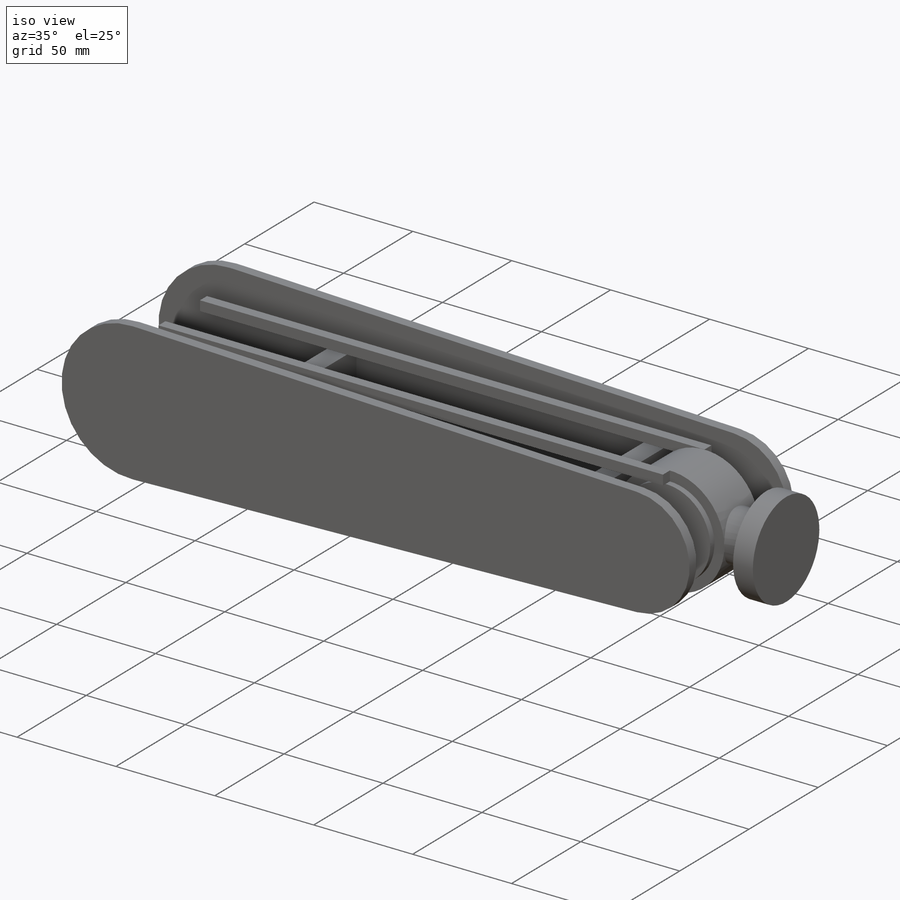
[diagram: iso view]
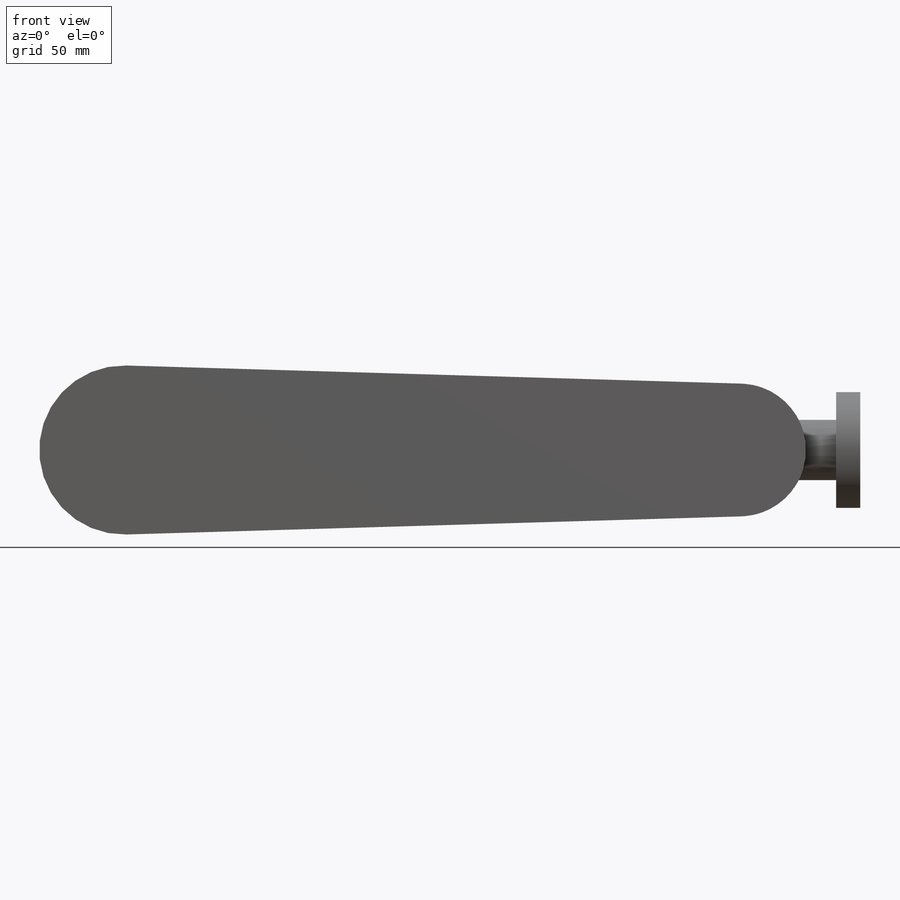
[diagram: front view]
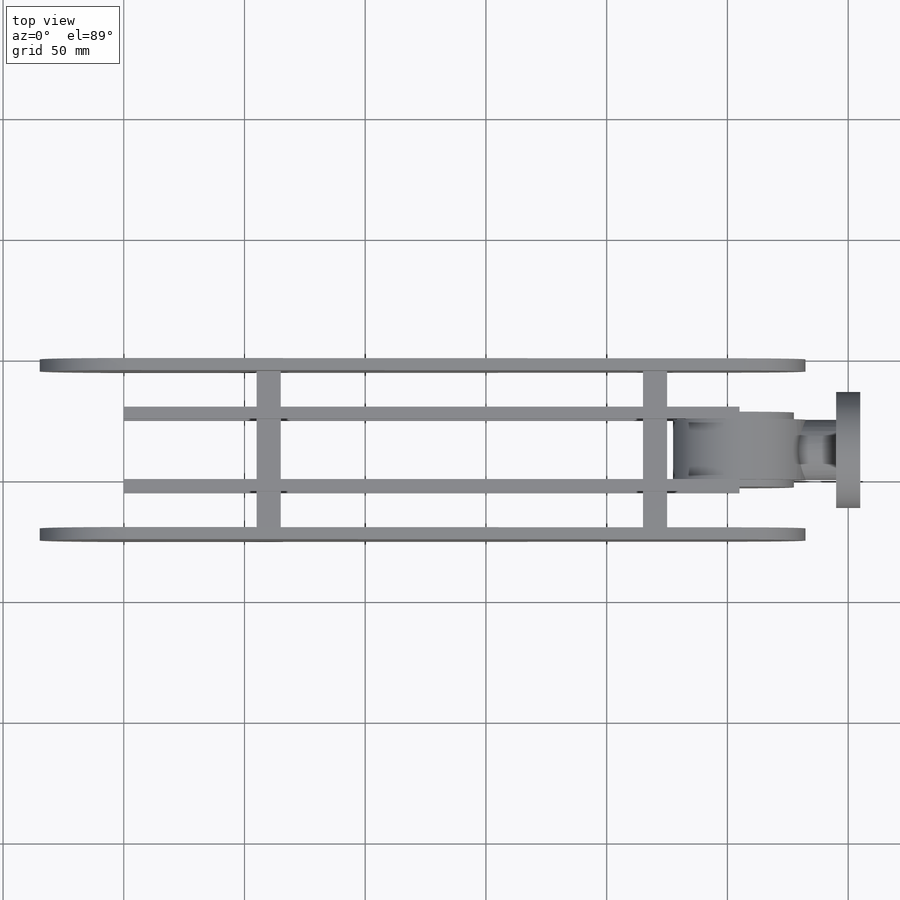
[diagram: top view]
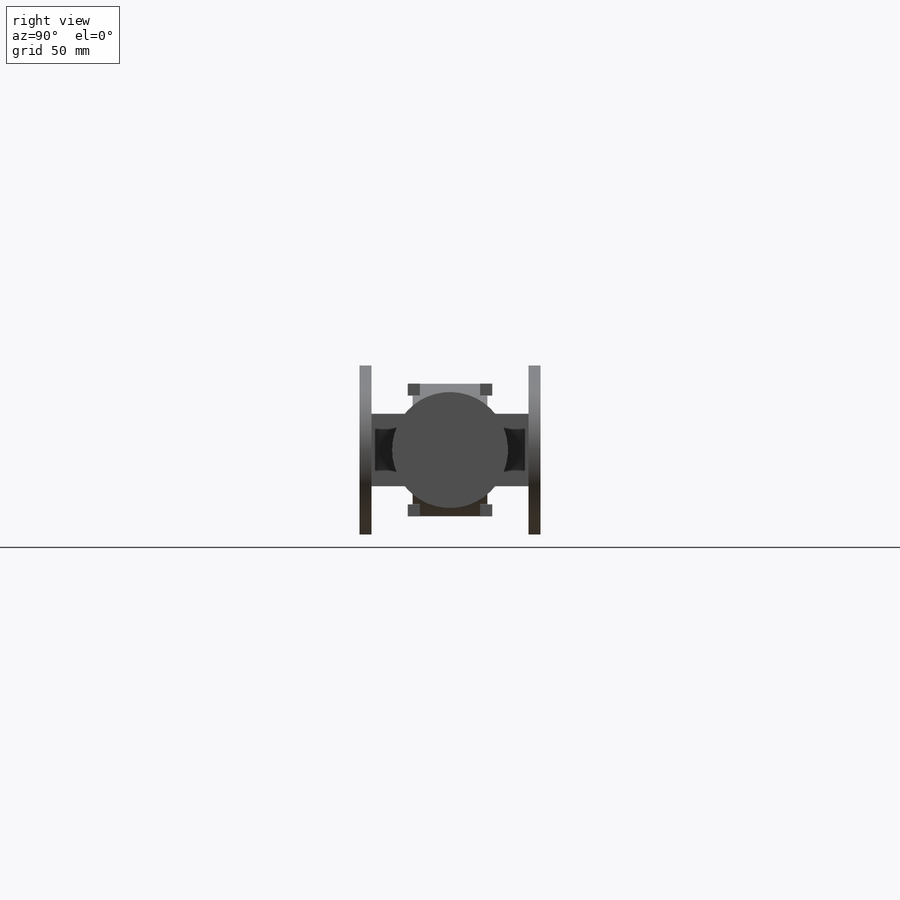
[diagram: right view]
SOLIDWORKS PART (.sldprt)
format: sldprt  version: not decoded by parser v0  size: 438,784 bytes
history: native  units: mm
features: move_body x16, extrude x8, sketch x4, material x1, cut_extrude x1 + 10 further entries (+38 scaffold rows collapsed; 26 parser-record rows omitted)
feature tree (104):
  scaffold x38  (default folders/planes/origin — collapsed)
  material  "1060 Alloy"
  sketch  "Sketch1"  dims[D1=255.0mm]
  extrude  "Boss-Extrude1"  Depth=75mm
  sketch  "Sketch2"  dims[D1=65.0mm]
  cut_extrude  "Cut-Extrude1"  Depth=94mm
  sketch  "Sketch3"  dims[D1=30.0mm]
  extrude  "Boss-Extrude2"  Depth=65mm
  "J4J5"
  parser-record x26  (decoder bookkeeping rows leaked as tree rows — omitted from the tree; the rows remain in map.json)
  move_body  "Body-Move/Copy1"
  extrude  "Surface Bodies3"  [1 undecoded]
  "Axes3"
  move_body  "Body-Move/Copy2"
  extrude  "Surface Bodies4"  [1 undecoded]
  "Axes4"
  move_body  "Body-Move/Copy3"
  move_body  "Coincident4"
  extrude  "Surface Bodies5"  [1 undecoded]
  "Axes5"
  sketch  "Sketch5"
  move_body  "Body-Move/Copy4"
  move_body  "Coincident6"
  move_body  "Coincident7"
  extrude  "Surface Bodies6"  [1 undecoded]
  "Axes6"
  move_body  "Body-Move/Copy5"
  "Tangent2"
  move_body  "Coincident9"
  move_body  "Coincident10"
  extrude  "Surface Bodies7"  [1 undecoded]
  "Axes7"
  move_body  "Body-Move/Copy6"
  "Tangent3"
  move_body  "Coincident14"
  move_body  "Coincident15"
  extrude  "Surface Bodies8"  [1 undecoded]
  "Axes8"
  move_body  "Body-Move/Copy7"
  "Tangent4"
  move_body  "Coincident17"
  move_body  "Coincident18"
decode coverage: 6 of 29 modeling features carry decoded parameters; 10 rows unclassified (native names shown)
note: 6 parameter values undecoded
summary: no parameter record found for 6 features
note: suppression state not decoded; provenance and decode notes live in map.json
